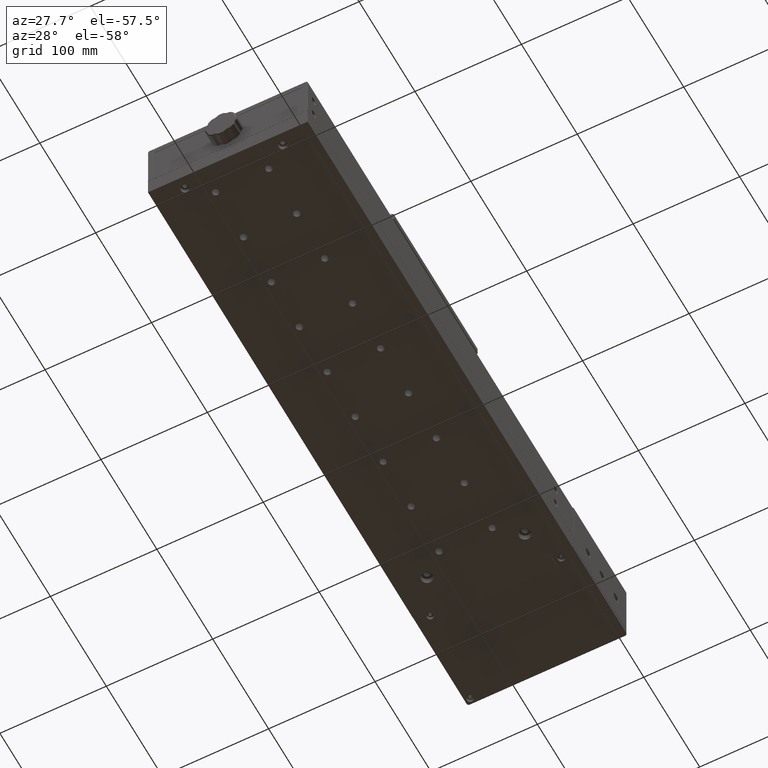
[diagram: clean part render]
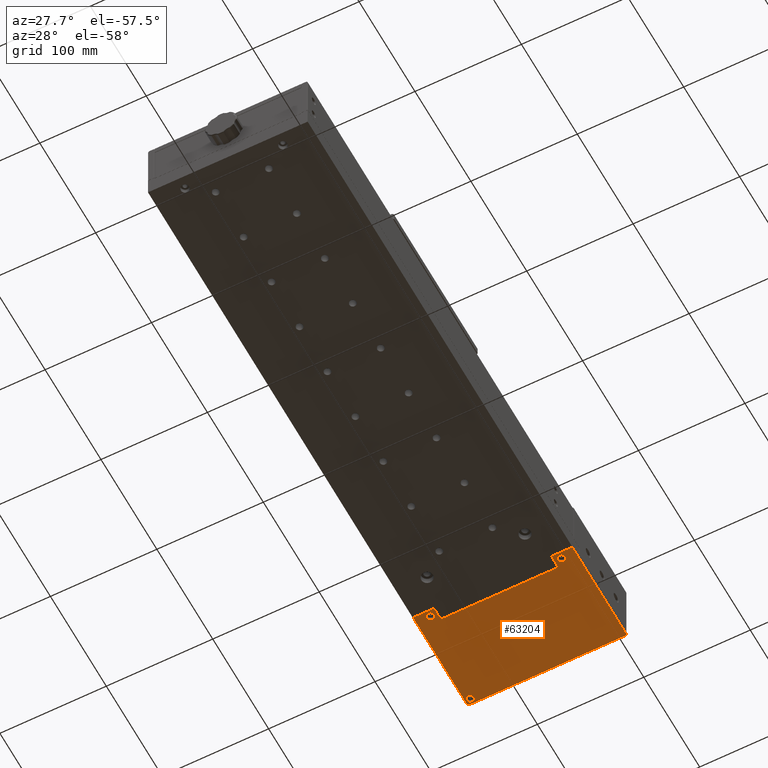
[diagram: same view with one face highlighted and labeled with its STEP entity id]
A machine part, auxiliary view. The second image highlights one B-rep face of the part: STEP entity #63204.
In plain terms, the highlighted planar face has unit normal (0, 0, -1).
Its self-contained STEP definition (entity closure, byte-faithful):
#354 = VERTEX_POINT ( 'NONE', #65648 ) ;
#554 = CARTESIAN_POINT ( 'NONE',  ( -125.7854323028808068, 363.8311902418280397, -21.75334974644444941 ) ) ;
#691 = DIRECTION ( 'NONE',  ( -1.000000000000000000, 2.775557561562890365E-16, -3.533035983106595086E-18 ) ) ;
#870 = VECTOR ( 'NONE', #74329, 1000.000000000000000 ) ;
#1922 = EDGE_CURVE ( 'NONE', #8645, #25157, #10665, .T. ) ;
#3329 = CARTESIAN_POINT ( 'NONE',  ( -125.5854323028808039, 376.2311902418280170, -21.75334974644444941 ) ) ;
#3981 = DIRECTION ( 'NONE',  ( 0.000000000000000000, -1.373363431444203935E-17, 1.000000000000000000 ) ) ;
#4392 = EDGE_CURVE ( 'NONE', #43085, #27492, #61184, .T. ) ;
#4484 = CARTESIAN_POINT ( 'NONE',  ( 2.414567697119204936, 461.8311902418279828, -21.75334974644444941 ) ) ;
#5325 = ORIENTED_EDGE ( 'NONE', *, *, #54858, .T. ) ;
#6140 = LINE ( 'NONE', #55821, #38591 ) ;
#7084 = CARTESIAN_POINT ( 'NONE',  ( -137.1354323028808153, 457.0311902418279715, -21.75334974644444941 ) ) ;
#7257 = DIRECTION ( 'NONE',  ( 0.000000000000000000, 1.373363431444203935E-17, -1.000000000000000000 ) ) ;
#7742 = CARTESIAN_POINT ( 'NONE',  ( -145.5854323028810029, 363.8311902418280397, -21.75334974644444941 ) ) ;
#8567 = AXIS2_PLACEMENT_3D ( 'NONE', #7742, #13449, #18759 ) ;
#8645 = VERTEX_POINT ( 'NONE', #39487 ) ;
#9077 = LINE ( 'NONE', #44537, #31290 ) ;
#10487 = AXIS2_PLACEMENT_3D ( 'NONE', #13362, #7257, #76844 ) ;
#10665 = CIRCLE ( 'NONE', #22358, 3.450000000000008615 ) ;
#10844 = ORIENTED_EDGE ( 'NONE', *, *, #69193, .T. ) ;
#10867 = CARTESIAN_POINT ( 'NONE',  ( -140.5854323028808039, 457.0311902418279715, -21.75334974644444941 ) ) ;
#10874 = EDGE_CURVE ( 'NONE', #19103, #47589, #36977, .T. ) ;
#11551 = EDGE_CURVE ( 'NONE', #25157, #8645, #78636, .T. ) ;
#13178 = CARTESIAN_POINT ( 'NONE',  ( 4.214567697119199430, 364.0311902418280283, -21.75334974644444941 ) ) ;
#13362 = CARTESIAN_POINT ( 'NONE',  ( -143.5854323028808039, 460.0311902418279715, -21.75334974644444941 ) ) ;
#13382 = VERTEX_POINT ( 'NONE', #7084 ) ;
#13449 = DIRECTION ( 'NONE',  ( 3.533035983106595086E-18, 1.373363431444203781E-17, -1.000000000000000000 ) ) ;
#13541 = DIRECTION ( 'NONE',  ( -1.415079346960751872E-15, -1.000000000000000000, -1.373363431444203781E-17 ) ) ;
#15223 = DIRECTION ( 'NONE',  ( 1.000000000000000000, 0.000000000000000000, 0.000000000000000000 ) ) ;
#18117 = VECTOR ( 'NONE', #691, 1000.000000000000000 ) ;
#18759 = DIRECTION ( 'NONE',  ( -1.000000000000000000, 0.000000000000000000, -3.533035983106595086E-18 ) ) ;
#19103 = VERTEX_POINT ( 'NONE', #77170 ) ;
#19198 = DIRECTION ( 'NONE',  ( 0.000000000000000000, -1.373363431444203935E-17, 1.000000000000000000 ) ) ;
#19847 = ORIENTED_EDGE ( 'NONE', *, *, #50847, .T. ) ;
#20432 = CARTESIAN_POINT ( 'NONE',  ( -128.6354323028807869, 369.5311902418280283, -21.75334974644444941 ) ) ;
#20665 = ORIENTED_EDGE ( 'NONE', *, *, #47387, .T. ) ;
#21229 = CARTESIAN_POINT ( 'NONE',  ( -144.0354323028807926, 457.0311902418279715, -21.75334974644444941 ) ) ;
#22358 = AXIS2_PLACEMENT_3D ( 'NONE', #62677, #26012, #42727 ) ;
#22528 = CARTESIAN_POINT ( 'NONE',  ( -125.7854323028808068, 376.2311902418280170, -21.75334974644444941 ) ) ;
#23016 = ORIENTED_EDGE ( 'NONE', *, *, #10874, .T. ) ;
#23282 = CARTESIAN_POINT ( 'NONE',  ( -9.085432302880839472, 369.5311902418280283, -21.75334974644444941 ) ) ;
#23487 = DIRECTION ( 'NONE',  ( 1.000000000000000000, 0.000000000000000000, 0.000000000000000000 ) ) ;
#23755 = VECTOR ( 'NONE', #44734, 1000.000000000000000 ) ;
#24490 = CARTESIAN_POINT ( 'NONE',  ( -132.0854323028808039, 369.5311902418280283, -21.75334974644444941 ) ) ;
#24643 = LINE ( 'NONE', #49487, #870 ) ;
#25157 = VERTEX_POINT ( 'NONE', #20432 ) ;
#26012 = DIRECTION ( 'NONE',  ( 0.000000000000000000, -1.373363431444203935E-17, 1.000000000000000000 ) ) ;
#26080 = FACE_BOUND ( 'NONE', #64104, .T. ) ;
#27092 = EDGE_LOOP ( 'NONE', ( #38229, #30474, #5325, #19847, #34069, #49189, #10844, #20665, #72956, #79224 ) ) ;
#27361 = DIRECTION ( 'NONE',  ( -1.000000000000000000, 2.775557561562890365E-16, -3.533035983106595086E-18 ) ) ;
#27492 = VERTEX_POINT ( 'NONE', #65890 ) ;
#27880 = DIRECTION ( 'NONE',  ( 2.775557561562890365E-16, 1.000000000000000000, 1.373363431444203781E-17 ) ) ;
#28529 = VERTEX_POINT ( 'NONE', #51773 ) ;
#28631 = EDGE_CURVE ( 'NONE', #354, #56616, #34258, .T. ) ;
#29144 = EDGE_CURVE ( 'NONE', #27492, #70757, #24643, .T. ) ;
#29267 = AXIS2_PLACEMENT_3D ( 'NONE', #24490, #19198, #50134 ) ;
#30474 = ORIENTED_EDGE ( 'NONE', *, *, #37050, .T. ) ;
#31290 = VECTOR ( 'NONE', #35123, 1000.000000000000000 ) ;
#32024 = CIRCLE ( 'NONE', #42424, 3.449999999999999734 ) ;
#33715 = CIRCLE ( 'NONE', #76646, 3.450000000000008615 ) ;
#33780 = CARTESIAN_POINT ( 'NONE',  ( -12.53543230288083876, 369.5311902418280283, -21.75334974644444941 ) ) ;
#34069 = ORIENTED_EDGE ( 'NONE', *, *, #4392, .T. ) ;
#34258 = LINE ( 'NONE', #3329, #56718 ) ;
#34637 = VECTOR ( 'NONE', #27880, 1000.000000000000000 ) ;
#35123 = DIRECTION ( 'NONE',  ( 4.000204360710245298E-16, 1.000000000000000000, 1.373363431444203781E-17 ) ) ;
#36977 = CIRCLE ( 'NONE', #56522, 3.449999999999999734 ) ;
#37050 = EDGE_CURVE ( 'NONE', #56616, #52891, #49385, .T. ) ;
#37132 = ORIENTED_EDGE ( 'NONE', *, *, #50050, .T. ) ;
#38229 = ORIENTED_EDGE ( 'NONE', *, *, #28631, .T. ) ;
#38591 = VECTOR ( 'NONE', #61533, 1000.000000000000000 ) ;
#38865 = CARTESIAN_POINT ( 'NONE',  ( -15.38543230288079933, 363.8311902418280397, -21.75334974644444941 ) ) ;
#39484 = VERTEX_POINT ( 'NONE', #46263 ) ;
#39487 = CARTESIAN_POINT ( 'NONE',  ( -135.5354323028808210, 369.5311902418280283, -21.75334974644444941 ) ) ;
#40227 = LINE ( 'NONE', #45534, #23755 ) ;
#41726 = DIRECTION ( 'NONE',  ( 0.000000000000000000, -1.373363431444203935E-17, 1.000000000000000000 ) ) ;
#42424 = AXIS2_PLACEMENT_3D ( 'NONE', #23282, #66848, #54256 ) ;
#42610 = EDGE_LOOP ( 'NONE', ( #37132, #63217 ) ) ;
#42727 = DIRECTION ( 'NONE',  ( 1.000000000000000000, 0.000000000000000000, 0.000000000000000000 ) ) ;
#43085 = VERTEX_POINT ( 'NONE', #71958 ) ;
#44537 = CARTESIAN_POINT ( 'NONE',  ( -145.3854323028808153, 460.0311902418279715, -21.75334974644444941 ) ) ;
#44734 = DIRECTION ( 'NONE',  ( -1.000000000000000000, 2.775557561562890365E-16, -3.533035983106595086E-18 ) ) ;
#45534 = CARTESIAN_POINT ( 'NONE',  ( -145.5854323028810029, 364.0311902418280283, -21.75334974644444941 ) ) ;
#45568 = EDGE_CURVE ( 'NONE', #77341, #13382, #60636, .T. ) ;
#46263 = CARTESIAN_POINT ( 'NONE',  ( -145.3854323028808153, 364.0311902418280283, -21.75334974644444941 ) ) ;
#47387 = EDGE_CURVE ( 'NONE', #56071, #52703, #6140, .T. ) ;
#47589 = VERTEX_POINT ( 'NONE', #33780 ) ;
#49189 = ORIENTED_EDGE ( 'NONE', *, *, #29144, .T. ) ;
#49385 = LINE ( 'NONE', #554, #65455 ) ;
#49487 = CARTESIAN_POINT ( 'NONE',  ( 2.414567697119204936, 461.8311902418279828, -21.75334974644444941 ) ) ;
#50050 = EDGE_CURVE ( 'NONE', #13382, #77341, #33715, .T. ) ;
#50134 = DIRECTION ( 'NONE',  ( 1.000000000000000000, 0.000000000000000000, 0.000000000000000000 ) ) ;
#50186 = EDGE_CURVE ( 'NONE', #52703, #28529, #62954, .T. ) ;
#50503 = FACE_BOUND ( 'NONE', #63936, .T. ) ;
#50847 = EDGE_CURVE ( 'NONE', #39484, #43085, #9077, .T. ) ;
#51773 = CARTESIAN_POINT ( 'NONE',  ( -15.38543230288079933, 364.0311902418280283, -21.75334974644444941 ) ) ;
#52703 = VERTEX_POINT ( 'NONE', #13178 ) ;
#52891 = VERTEX_POINT ( 'NONE', #72961 ) ;
#53094 = CARTESIAN_POINT ( 'NONE',  ( 2.414567697119204936, 460.0311902418279715, -21.75334974644444941 ) ) ;
#54256 = DIRECTION ( 'NONE',  ( 1.000000000000000000, 0.000000000000000000, 0.000000000000000000 ) ) ;
#54707 = DIRECTION ( 'NONE',  ( 1.000000000000000000, 0.000000000000000000, 0.000000000000000000 ) ) ;
#54858 = EDGE_CURVE ( 'NONE', #52891, #39484, #40227, .T. ) ;
#55473 = AXIS2_PLACEMENT_3D ( 'NONE', #64906, #59591, #15223 ) ;
#55821 = CARTESIAN_POINT ( 'NONE',  ( 4.214567697119199430, 363.8311902418280397, -21.75334974644444941 ) ) ;
#56071 = VERTEX_POINT ( 'NONE', #76790 ) ;
#56522 = AXIS2_PLACEMENT_3D ( 'NONE', #74264, #41726, #66563 ) ;
#56616 = VERTEX_POINT ( 'NONE', #22528 ) ;
#56718 = VECTOR ( 'NONE', #27361, 1000.000000000000000 ) ;
#57897 = AXIS2_PLACEMENT_3D ( 'NONE', #53094, #72202, #54707 ) ;
#59591 = DIRECTION ( 'NONE',  ( 0.000000000000000000, -1.373363431444203935E-17, 1.000000000000000000 ) ) ;
#60636 = CIRCLE ( 'NONE', #55473, 3.450000000000008615 ) ;
#61184 = CIRCLE ( 'NONE', #10487, 1.799999999999996048 ) ;
#61533 = DIRECTION ( 'NONE',  ( 5.087580051744629588E-18, -1.000000000000000000, -1.373363431444203781E-17 ) ) ;
#62677 = CARTESIAN_POINT ( 'NONE',  ( -132.0854323028808039, 369.5311902418280283, -21.75334974644444941 ) ) ;
#62954 = LINE ( 'NONE', #63344, #18117 ) ;
#63204 = ADVANCED_FACE ( 'NONE', ( #63944, #50503, #26080, #63526 ), #69631, .T. ) ;
#63217 = ORIENTED_EDGE ( 'NONE', *, *, #45568, .T. ) ;
#63344 = CARTESIAN_POINT ( 'NONE',  ( -15.58543230288080039, 364.0311902418280283, -21.75334974644444941 ) ) ;
#63526 = FACE_OUTER_BOUND ( 'NONE', #27092, .T. ) ;
#63936 = EDGE_LOOP ( 'NONE', ( #23016, #66012 ) ) ;
#63944 = FACE_BOUND ( 'NONE', #42610, .T. ) ;
#64104 = EDGE_LOOP ( 'NONE', ( #72397, #79865 ) ) ;
#64906 = CARTESIAN_POINT ( 'NONE',  ( -140.5854323028808039, 457.0311902418279715, -21.75334974644444941 ) ) ;
#65455 = VECTOR ( 'NONE', #13541, 1000.000000000000000 ) ;
#65648 = CARTESIAN_POINT ( 'NONE',  ( -15.38543230288079933, 376.2311902418280170, -21.75334974644444941 ) ) ;
#65890 = CARTESIAN_POINT ( 'NONE',  ( -143.5854323028808039, 461.8311902418279828, -21.75334974644444941 ) ) ;
#66012 = ORIENTED_EDGE ( 'NONE', *, *, #70401, .T. ) ;
#66563 = DIRECTION ( 'NONE',  ( 1.000000000000000000, 0.000000000000000000, 0.000000000000000000 ) ) ;
#66848 = DIRECTION ( 'NONE',  ( 0.000000000000000000, -1.373363431444203935E-17, 1.000000000000000000 ) ) ;
#69193 = EDGE_CURVE ( 'NONE', #70757, #56071, #76131, .T. ) ;
#69631 = PLANE ( 'NONE',  #8567 ) ;
#69809 = LINE ( 'NONE', #38865, #34637 ) ;
#70222 = EDGE_CURVE ( 'NONE', #28529, #354, #69809, .T. ) ;
#70401 = EDGE_CURVE ( 'NONE', #47589, #19103, #32024, .T. ) ;
#70757 = VERTEX_POINT ( 'NONE', #4484 ) ;
#71958 = CARTESIAN_POINT ( 'NONE',  ( -145.3854323028808153, 460.0311902418279715, -21.75334974644444941 ) ) ;
#72202 = DIRECTION ( 'NONE',  ( 0.000000000000000000, 1.373363431444203935E-17, -1.000000000000000000 ) ) ;
#72397 = ORIENTED_EDGE ( 'NONE', *, *, #11551, .T. ) ;
#72956 = ORIENTED_EDGE ( 'NONE', *, *, #50186, .T. ) ;
#72961 = CARTESIAN_POINT ( 'NONE',  ( -125.7854323028808068, 364.0311902418280283, -21.75334974644444941 ) ) ;
#74264 = CARTESIAN_POINT ( 'NONE',  ( -9.085432302880839472, 369.5311902418280283, -21.75334974644444941 ) ) ;
#74329 = DIRECTION ( 'NONE',  ( 1.000000000000000000, -2.775557561562890365E-16, 3.533035983106595086E-18 ) ) ;
#76131 = CIRCLE ( 'NONE', #57897, 1.800000000000000044 ) ;
#76646 = AXIS2_PLACEMENT_3D ( 'NONE', #10867, #3981, #23487 ) ;
#76790 = CARTESIAN_POINT ( 'NONE',  ( 4.214567697119199430, 460.0311902418279715, -21.75334974644444941 ) ) ;
#76844 = DIRECTION ( 'NONE',  ( 1.000000000000000000, 0.000000000000000000, 0.000000000000000000 ) ) ;
#77170 = CARTESIAN_POINT ( 'NONE',  ( -5.635432302880829525, 369.5311902418280283, -21.75334974644444941 ) ) ;
#77341 = VERTEX_POINT ( 'NONE', #21229 ) ;
#78636 = CIRCLE ( 'NONE', #29267, 3.450000000000008615 ) ;
#79224 = ORIENTED_EDGE ( 'NONE', *, *, #70222, .T. ) ;
#79865 = ORIENTED_EDGE ( 'NONE', *, *, #1922, .T. ) ;